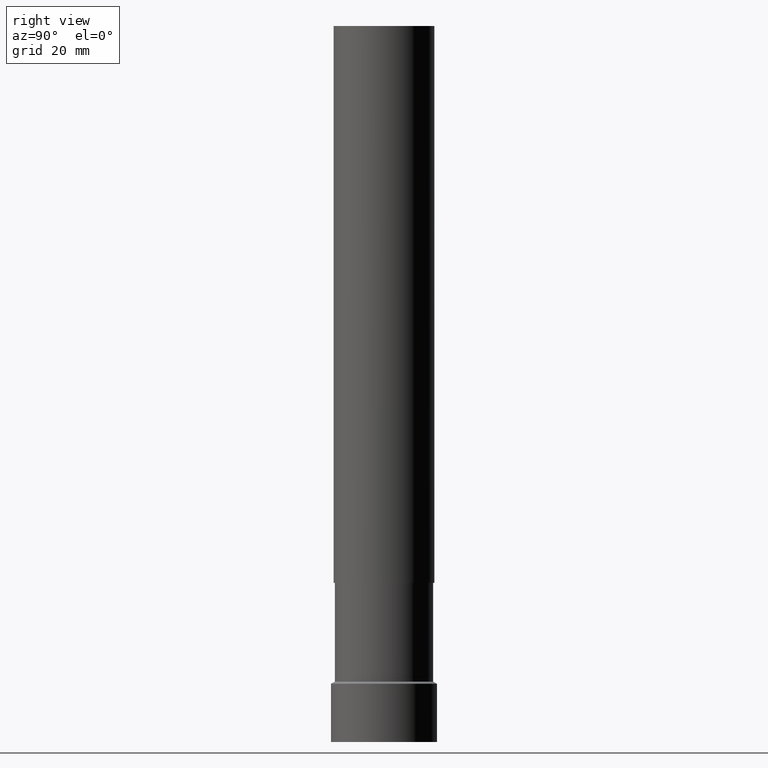
[diagram: clean part render]
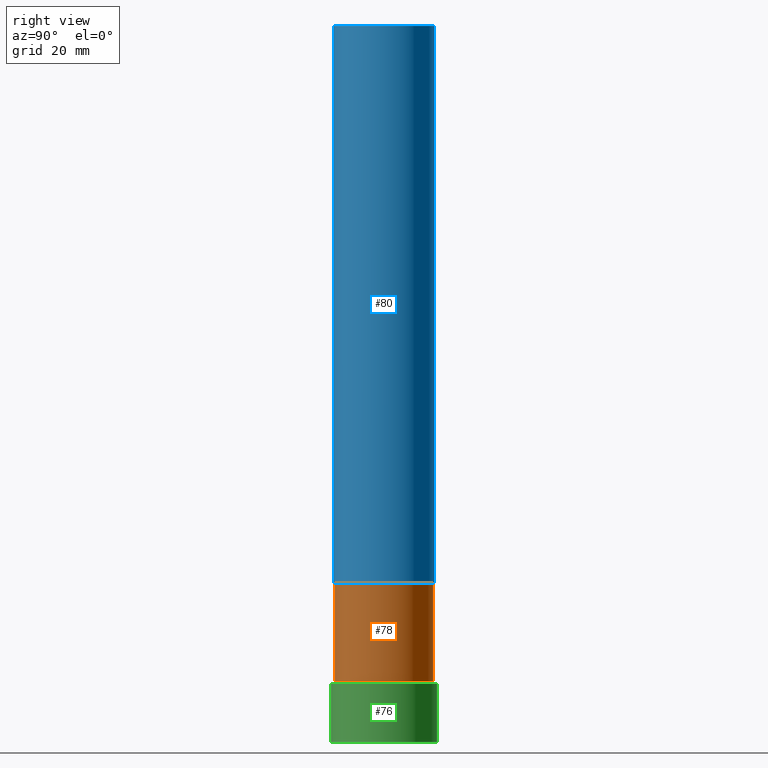
[diagram: same view with three faces highlighted in distinct colors, each labeled with its STEP entity id]
A machine part, right view with three faces highlighted in distinct colors.
Their STEP definitions:

[orange] entity #78 — the highlighted cylindrical surface (bore or boss wall) has radius 9.2557 mm, axis along (0, 0, -1).
#78=ADVANCED_FACE('',(#91,#92),#93,.T.);
#91=FACE_BOUND('',#110,.T.);
#92=FACE_BOUND('',#111,.T.);
#93=CYLINDRICAL_SURFACE('',#112,9.25573921102286);
#110=EDGE_LOOP('',(#135));
#111=EDGE_LOOP('',(#136));
#112=AXIS2_PLACEMENT_3D('',#137,#138,#139);
#135=ORIENTED_EDGE('',*,*,#157,.F.);
#136=ORIENTED_EDGE('',*,*,#156,.T.);
#137=CARTESIAN_POINT('',(-1.26708752272238E-015,-1.53724285493867E-014,20.6931096150266));
#138=DIRECTION('',(6.12323399573676E-017,7.42876679018938E-016,-1.0));
#139=DIRECTION('',(-5.03152300868537E-032,1.0,7.42876679018938E-016));
#156=EDGE_CURVE('',#164,#164,#165,.T.);
#157=EDGE_CURVE('',#166,#166,#167,.T.);
#164=VERTEX_POINT('',#176);
#165=CIRCLE('',#177,9.25573921102283);
#166=VERTEX_POINT('',#178);
#167=CIRCLE('',#179,9.25573921102289);
#176=CARTESIAN_POINT('',(-6.97204846723751E-016,9.25573921102282,11.3862192300535));
#177=AXIS2_PLACEMENT_3D('',#190,#191,#192);
#178=CARTESIAN_POINT('',(-1.83697019872102E-015,9.25573921102287,29.9999999999998));
#179=AXIS2_PLACEMENT_3D('',#193,#194,#195);
#190=CARTESIAN_POINT('',(-6.97204846723751E-016,-8.45855672820417E-015,11.3862192300535));
#191=DIRECTION('',(-6.12323399573677E-017,-7.42876679018941E-016,1.0));
#192=DIRECTION('',(-5.03152300868538E-032,1.0,7.42876679018941E-016));
#193=CARTESIAN_POINT('',(-1.83697019872102E-015,-2.22863003705692E-014,29.9999999999998));
#194=DIRECTION('',(-6.12323399573677E-017,-7.42876679018936E-016,1.0));
#195=DIRECTION('',(-5.03152300868486E-032,1.0,7.42876679018936E-016));

[blue] entity #80 — the highlighted cylindrical surface (bore or boss wall) has radius 9.5 mm, axis along (0, 0, -1).
#80=ADVANCED_FACE('',(#97,#98),#99,.T.);
#97=FACE_BOUND('',#116,.T.);
#98=FACE_BOUND('',#117,.T.);
#99=CYLINDRICAL_SURFACE('',#118,9.50000000000091);
#116=EDGE_LOOP('',(#145));
#117=EDGE_LOOP('',(#146));
#118=AXIS2_PLACEMENT_3D('',#147,#148,#149);
#145=ORIENTED_EDGE('',*,*,#159,.F.);
#146=ORIENTED_EDGE('',*,*,#158,.T.);
#147=CARTESIAN_POINT('',(-5.05166804648282E-015,-6.12873260190656E-014,82.4999999999998));
#148=DIRECTION('',(6.12323399573677E-017,7.42876679018993E-016,-1.0));
#149=DIRECTION('',(-5.03152300868608E-032,1.0,7.42876679018993E-016));
#158=EDGE_CURVE('',#168,#168,#169,.T.);
#159=EDGE_CURVE('',#170,#170,#171,.T.);
#168=VERTEX_POINT('',#180);
#169=CIRCLE('',#181,9.50000000000201);
#170=VERTEX_POINT('',#182);
#171=CIRCLE('',#183,9.49999999999981);
#180=CARTESIAN_POINT('',(-1.83697019872102E-015,9.50000000000199,29.9999999999999));
#181=AXIS2_PLACEMENT_3D('',#196,#197,#198);
#182=CARTESIAN_POINT('',(-8.26636589424462E-015,9.49999999999971,135.0));
#183=AXIS2_PLACEMENT_3D('',#199,#200,#201);
#196=CARTESIAN_POINT('',(-1.83697019872102E-015,-2.22863003705693E-014,29.9999999999999));
#197=DIRECTION('',(-6.12323399573677E-017,-7.42876679018992E-016,1.0));
#198=DIRECTION('',(-5.03152300868597E-032,1.0,7.42876679018992E-016));
#199=CARTESIAN_POINT('',(-8.26636589424462E-015,-1.00288351667562E-013,135.0));
#200=DIRECTION('',(-6.12323399573676E-017,-7.42876679018993E-016,1.0));
#201=DIRECTION('',(-5.03152300868619E-032,1.0,7.42876679018993E-016));

[green] entity #76 — the highlighted cylindrical surface (bore or boss wall) has radius 10 mm, axis along (0, 0, -1).
#76=ADVANCED_FACE('',(#85,#86),#87,.T.);
#85=FACE_BOUND('',#104,.T.);
#86=FACE_BOUND('',#105,.T.);
#87=CYLINDRICAL_SURFACE('',#106,10.0);
#104=EDGE_LOOP('',(#125));
#105=EDGE_LOOP('',(#126));
#106=AXIS2_PLACEMENT_3D('',#127,#128,#129);
#125=ORIENTED_EDGE('',*,*,#155,.F.);
#126=ORIENTED_EDGE('',*,*,#154,.T.);
#127=CARTESIAN_POINT('',(-3.36504059926248E-016,-4.08249984711449E-015,5.49552834597756));
#128=DIRECTION('',(6.12323399573677E-017,7.42876679019018E-016,-1.0));
#129=DIRECTION('',(-5.03152300868639E-032,1.0,7.42876679019018E-016));
#154=EDGE_CURVE('',#160,#160,#161,.T.);
#155=EDGE_CURVE('',#162,#162,#163,.T.);
#160=VERTEX_POINT('',#172);
#161=CIRCLE('',#173,9.99999999999999);
#162=VERTEX_POINT('',#174);
#163=CIRCLE('',#175,10.0000000000001);
#172=CARTESIAN_POINT('',(0.0,9.99999999999999,0.0));
#173=AXIS2_PLACEMENT_3D('',#184,#185,#186);
#174=CARTESIAN_POINT('',(-6.73008119852497E-016,10.0000000000001,10.9910566919551));
#175=AXIS2_PLACEMENT_3D('',#187,#188,#189);
#184=CARTESIAN_POINT('',(0.0,0.0,0.0));
#185=DIRECTION('',(-6.12323399573676E-017,-7.42876679018941E-016,1.0));
#186=DIRECTION('',(-5.03152300868597E-032,1.0,7.42876679018941E-016));
#187=CARTESIAN_POINT('',(-6.73008119852497E-016,-8.16499969422895E-015,10.9910566919551));
#188=DIRECTION('',(-6.12323399573677E-017,-7.42876679019014E-016,1.0));
#189=DIRECTION('',(-5.03152300868592E-032,1.0,7.42876679019014E-016));